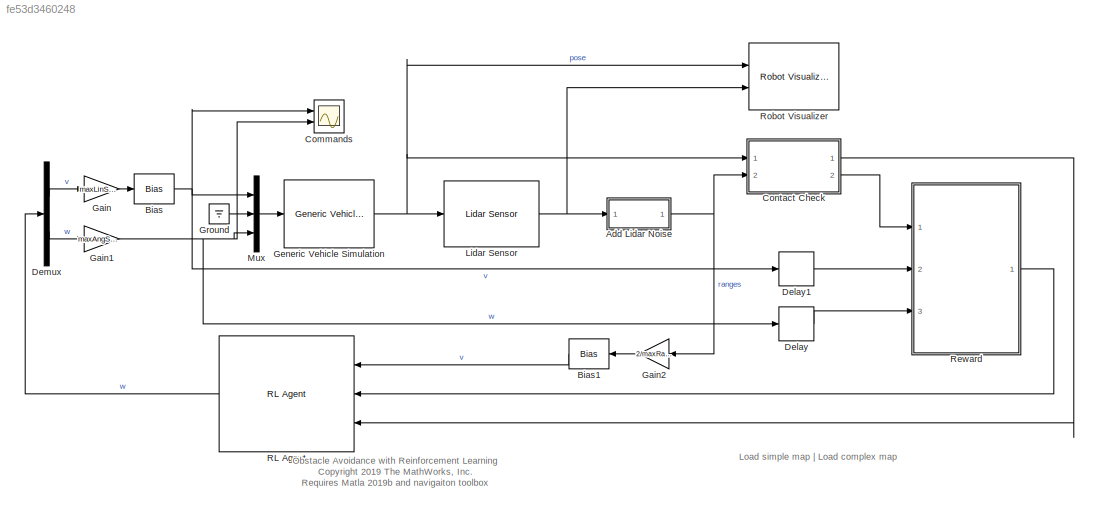
MODEL slx_fe53d3460248
KIND model
CONFIG AbsTol = auto
CONFIG EnableMultiTasking = off
CONFIG FixedStep = auto
CONFIG InitFcn = close all;\nclear showPath;\nlidarNoiseSeeds = randi(intmax,size(scanAngles));
CONFIG MaxStep = auto
CONFIG MinStep = auto
CONFIG RelTol = 1e-3
CONFIG SampleTimeConstraint = Unconstrained
CONFIG Solver = ode23t
CONFIG SolverName = ode23t
CONFIG StartTime = 0.0
CONFIG StopTime = inf
WORKSPACE source: mxarray member
WORKSPACE mapForSim: object (value not decoded)
WORKSPACE occGrid: robotics.BinaryOccupancyGrid (value not decoded)
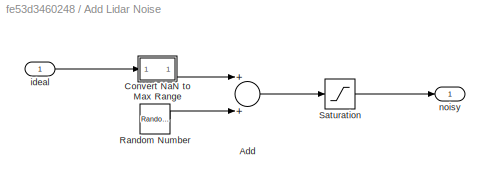
BLOCK [SubSystem] Add Lidar Noise
  Ports = [1, 1]
  RequestExecContextInheritance = off
BLOCK [Sum] Add Lidar Noise/Add
  InputSameDT = off
  OutDataTypeStr = Inherit: Inherit via internal rule
  Ports = [2, 1]
  SaturateOnIntegerOverflow = off
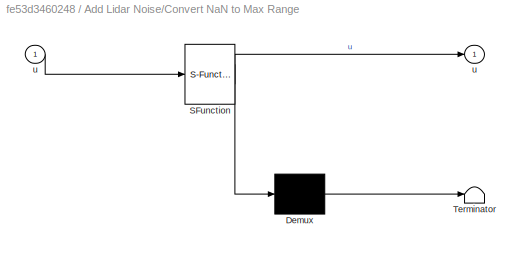
BLOCK [SubSystem] Add Lidar Noise/Convert NaN to Max Range
  ErrorFcn = Stateflow.Translate.translate
  PermitHierarchicalResolution = ExplicitOnly
  Ports = [1, 1]
  RequestExecContextInheritance = off
  SFBlockType = MATLAB Function
  TreatAsAtomicUnit = on
BLOCK [Demux] Add Lidar Noise/Convert NaN to Max Range/ Demux 
  Outputs = 1
  Ports = [1, 1]
BLOCK [S-Function] Add Lidar Noise/Convert NaN to Max Range/ SFunction 
  EnableBusSupport = on
  FunctionName = sf_sfun
  Parameters = maxRange
  PortCounts = [1 2]
  Ports = [1, 2]
  SFcnIsStateOwnerBlock = off
  SFunctionDeploymentMode = off
  Tag = Stateflow S-Function 2
BLOCK [Terminator] Add Lidar Noise/Convert NaN to Max Range/ Terminator 
BLOCK [Outport] Add Lidar Noise/Convert NaN to Max Range/u
  IconDisplay = Port number
  VectorParamsAs1DForOutWhenUnconnected = off
BLOCK [Inport] Add Lidar Noise/Convert NaN to Max Range/u 
  IconDisplay = Port number
BLOCK [RandomNumber] Add Lidar Noise/Random Number
  SampleTime = sampleTime
  Seed = lidarNoiseSeeds
  Variance = lidarNoiseVariance
BLOCK [Saturate] Add Lidar Noise/Saturation
  InputPortMap = u0
  LowerLimit = 0
  Ports = [1, 1]
  UpperLimit = inf
BLOCK [Inport] Add Lidar Noise/ideal
  IconDisplay = Port number
BLOCK [Outport] Add Lidar Noise/noisy
  IconDisplay = Port number
BLOCK [Bias] Bias
  Bias = maxLinSpeed/2
  SaturateOnIntegerOverflow = off
BLOCK [Bias] Bias1
  Bias = -1
  SaturateOnIntegerOverflow = off
BLOCK [Scope] Commands
  Floating = off
  NumInputPorts = 2
  Ports = [2]
  ScopeSpecificationString = Simulink.scopes.TimeScopeBlockCfg('CurrentConfiguration', extmgr.ConfigurationSet(extmgr.Configuration('Core','General UI',true),extmgr.Configuration('Core','Source UI',true),extmgr.Configuration('Sources','WiredSimulink',true,'DataLoggingVariableName','ScopeData1'),extmgr.Configuration('Visuals','Time Domain',true,'SerializedDisplays',{struct('MinYLimReal','0.299951','MaxYLimReal','0.299999','YLa...<+2023ch>
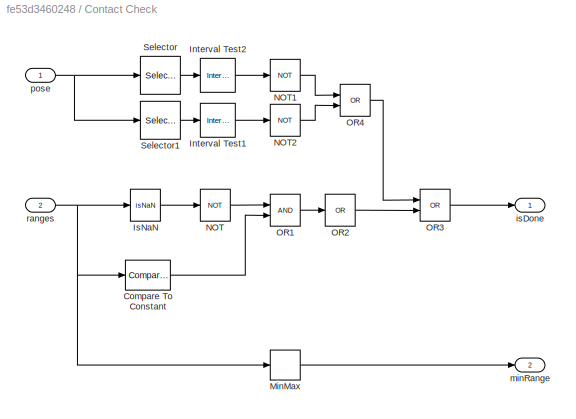
BLOCK [SubSystem] Contact Check
  Ports = [2, 2]
  RequestExecContextInheritance = off
BLOCK [Reference] Contact Check/Compare To Constant  REF=simulink/Logic and Bit
Operations/Compare
To Constant
  Ports = [1, 1]
  SourceBlock = simulink/Logic and Bit\nOperations/Compare\nTo Constant
  SourceProductBaseCode = SL
  SourceProductName = Simulink
  SourceType = Compare To Constant
BLOCK [Reference] Contact Check/Interval Test1  REF=simulink/Logic and Bit
Operations/Interval Test
  Ports = [1, 1]
  SourceBlock = simulink/Logic and Bit\nOperations/Interval Test
  SourceProductBaseCode = SL
  SourceProductName = Simulink
  SourceType = Interval Test
BLOCK [Reference] Contact Check/Interval Test2  REF=simulink/Logic and Bit
Operations/Interval Test
  Ports = [1, 1]
  SourceBlock = simulink/Logic and Bit\nOperations/Interval Test
  SourceProductBaseCode = SL
  SourceProductName = Simulink
  SourceType = Interval Test
BLOCK [RelationalOperator] Contact Check/IsNaN
  InputSameDT = off
  Operator = isNaN
  OutDataTypeStr = boolean
  Ports = [1, 1]
  RndMeth = Simplest
BLOCK [MinMax] Contact Check/MinMax
  InputSameDT = off
  Ports = [1, 1]
  SaturateOnIntegerOverflow = off
BLOCK [Logic] Contact Check/NOT
  AllPortsSameDT = off
  IconShape = distinctive
  Operator = NOT
  OutDataTypeStr = boolean
  Ports = [1, 1]
BLOCK [Logic] Contact Check/NOT1
  AllPortsSameDT = off
  IconShape = distinctive
  Operator = NOT
  OutDataTypeStr = boolean
  Ports = [1, 1]
BLOCK [Logic] Contact Check/NOT2
  AllPortsSameDT = off
  IconShape = distinctive
  Operator = NOT
  OutDataTypeStr = boolean
  Ports = [1, 1]
BLOCK [Logic] Contact Check/OR1
  AllPortsSameDT = off
  IconShape = distinctive
  OutDataTypeStr = boolean
  Ports = [2, 1]
BLOCK [Logic] Contact Check/OR2
  AllPortsSameDT = off
  IconShape = distinctive
  Inputs = 1
  Operator = OR
  OutDataTypeStr = boolean
  Ports = [1, 1]
BLOCK [Logic] Contact Check/OR3
  AllPortsSameDT = off
  IconShape = distinctive
  Operator = OR
  OutDataTypeStr = boolean
  Ports = [2, 1]
BLOCK [Logic] Contact Check/OR4
  AllPortsSameDT = off
  IconShape = distinctive
  Operator = OR
  OutDataTypeStr = boolean
  Ports = [2, 1]
BLOCK [Selector] Contact Check/Selector
  IndexOptions = Index vector (dialog)
  Indices = 1
  InputPortWidth = 3
  OutputSizes = 1
  Ports = [1, 1]
BLOCK [Selector] Contact Check/Selector1
  IndexOptions = Index vector (dialog)
  Indices = 2
  InputPortWidth = 3
  OutputSizes = 1
  Ports = [1, 1]
BLOCK [Outport] Contact Check/isDone
  IconDisplay = Port number
  VectorParamsAs1DForOutWhenUnconnected = off
BLOCK [Outport] Contact Check/minRange
  IconDisplay = Port number
  Port = 2
  VectorParamsAs1DForOutWhenUnconnected = off
BLOCK [Inport] Contact Check/pose
  IconDisplay = Port number
BLOCK [Inport] Contact Check/ranges
  IconDisplay = Port number
  Port = 2
BLOCK [Delay] Delay
  DelayLength = 1
  InputPortMap = u0
  Ports = [1, 1]
BLOCK [Delay] Delay1
  DelayLength = 1
  InputPortMap = u0
  Ports = [1, 1]
BLOCK [Demux] Demux
  DisplayOption = bar
  Outputs = 2
  Ports = [1, 2]
BLOCK [Gain] Gain
  Gain = maxLinSpeed/2
  OutDataTypeStr = Inherit: Inherit via internal rule
  ParamDataTypeStr = Inherit: Inherit via internal rule
  SaturateOnIntegerOverflow = off
BLOCK [Gain] Gain1
  Gain = maxAngSpeed
  OutDataTypeStr = Inherit: Inherit via internal rule
  ParamDataTypeStr = Inherit: Inherit via internal rule
  SaturateOnIntegerOverflow = off
BLOCK [Gain] Gain2
  Gain = 2/maxRange
  OutDataTypeStr = Inherit: Inherit via internal rule
  ParamDataTypeStr = Inherit: Inherit via internal rule
  SaturateOnIntegerOverflow = off
BLOCK [Reference] Generic Vehicle Simulation  REF=mobileRoboticsLib/Utilities/Generic Vehicle Simulation
  Ports = [1, 1]
  SourceBlock = mobileRoboticsLib/Utilities/Generic Vehicle Simulation
  SourceProductName = Mobile Robotics Simulation Library
  SourceType = Generic Vehicle Simulation
BLOCK [Ground] Ground
BLOCK [Reference] Lidar Sensor  REF=mobileRoboticsLib/Environments/Lidar Sensor
  Ports = [1, 1]
  SourceBlock = mobileRoboticsLib/Environments/Lidar Sensor
  SourceProductName = Ground Vehicles Library
  SourceType = LidarSensor
BLOCK [Mux] Mux
  DisplayOption = bar
  Inputs = 3
  Ports = [3, 1]
BLOCK [Reference] RL Agent  REF=rllib/RL Agent
  Ports = [3, 1]
  SourceBlock = rllib/RL Agent
  SourceProductBaseCode = RL
  SourceProductName = Reinforcement Learning Toolbox
  SourceType = RL Agent
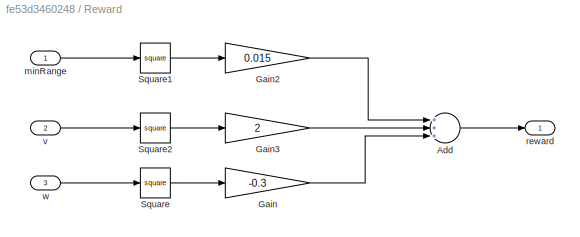
BLOCK [SubSystem] Reward
  Ports = [3, 1]
  RequestExecContextInheritance = off
BLOCK [Sum] Reward/Add
  InputSameDT = off
  Inputs = +++
  OutDataTypeStr = Inherit: Inherit via internal rule
  Ports = [3, 1]
  SaturateOnIntegerOverflow = off
BLOCK [Gain] Reward/Gain
  Gain = -0.3
  OutDataTypeStr = Inherit: Inherit via internal rule
  ParamDataTypeStr = Inherit: Inherit via internal rule
  SaturateOnIntegerOverflow = off
BLOCK [Gain] Reward/Gain2
  Gain = 0.015
  OutDataTypeStr = Inherit: Inherit via internal rule
  ParamDataTypeStr = Inherit: Inherit via internal rule
  SaturateOnIntegerOverflow = off
BLOCK [Gain] Reward/Gain3
  Gain = 2
  OutDataTypeStr = Inherit: Inherit via internal rule
  ParamDataTypeStr = Inherit: Inherit via internal rule
  SaturateOnIntegerOverflow = off
BLOCK [Math] Reward/Square
  Operator = square
  Ports = [1, 1]
BLOCK [Math] Reward/Square1
  Operator = square
  Ports = [1, 1]
BLOCK [Math] Reward/Square2
  Operator = square
  Ports = [1, 1]
BLOCK [Inport] Reward/minRange
  IconDisplay = Port number
BLOCK [Outport] Reward/reward
  IconDisplay = Port number
  VectorParamsAs1DForOutWhenUnconnected = off
BLOCK [Inport] Reward/v
  IconDisplay = Port number
  Port = 2
BLOCK [Inport] Reward/w
  IconDisplay = Port number
  Port = 3
BLOCK [Reference] Robot Visualizer  REF=mobileRoboticsLib/Environments/Robot Visualizer
  Ports = [2]
  Priority = 99
  SourceBlock = mobileRoboticsLib/Environments/Robot Visualizer
  SourceProductName = Ground Vehicles Library
  SourceType = Visualizer2D
ANNOTATION (root): Load simple map | Load complex map
ANNOTATION (root): Obstacle Avoidance with Reinforcement Learning <copyright redacted>
LINE Add Lidar Noise/Add:1 -> Add Lidar Noise/Saturation:1
LINE Add Lidar Noise/Convert NaN to Max Range:1 -> Add Lidar Noise/Add:1
LINE Add Lidar Noise/Random Number:1 -> Add Lidar Noise/Add:2
LINE Add Lidar Noise/Saturation:1 -> Add Lidar Noise/noisy:1
LINE Add Lidar Noise/ideal:1 -> Add Lidar Noise/Convert NaN to Max Range:1
NET Add Lidar Noise:1 -> Contact Check:2, Gain2:1
LINE Bias1:1 -> RL Agent:1
NET Bias:1 -> Commands:1, Delay1:1, Mux:1
LINE Contact Check/Compare To Constant:1 -> Contact Check/OR1:2
LINE Contact Check/Interval Test1:1 -> Contact Check/NOT2:1
LINE Contact Check/Interval Test2:1 -> Contact Check/NOT1:1
LINE Contact Check/IsNaN:1 -> Contact Check/NOT:1
LINE Contact Check/MinMax:1 -> Contact Check/minRange:1
LINE Contact Check/NOT1:1 -> Contact Check/OR4:1
LINE Contact Check/NOT2:1 -> Contact Check/OR4:2
LINE Contact Check/NOT:1 -> Contact Check/OR1:1
LINE Contact Check/OR1:1 -> Contact Check/OR2:1
LINE Contact Check/OR2:1 -> Contact Check/OR3:2
LINE Contact Check/OR3:1 -> Contact Check/isDone:1
LINE Contact Check/OR4:1 -> Contact Check/OR3:1
LINE Contact Check/Selector1:1 -> Contact Check/Interval Test1:1
LINE Contact Check/Selector:1 -> Contact Check/Interval Test2:1
NET Contact Check/pose:1 -> Contact Check/Selector1:1, Contact Check/Selector:1
NET Contact Check/ranges:1 -> Contact Check/Compare To Constant:1, Contact Check/IsNaN:1, Contact Check/MinMax:1
LINE Contact Check:1 -> RL Agent:3
LINE Contact Check:2 -> Reward:1
LINE Delay1:1 -> Reward:2
LINE Delay:1 -> Reward:3
LINE Demux:1 -> Gain:1
LINE Demux:2 -> Gain1:1
NET Gain1:1 -> Commands:2, Delay:1, Mux:3
LINE Gain2:1 -> Bias1:1
LINE Gain:1 -> Bias:1
NET Generic Vehicle Simulation:1 -> Contact Check:1, Lidar Sensor:1, Robot Visualizer:1
LINE Ground:1 -> Mux:2
NET Lidar Sensor:1 -> Add Lidar Noise:1, Robot Visualizer:2
LINE Mux:1 -> Generic Vehicle Simulation:1
LINE RL Agent:1 -> Demux:1
LINE Reward/Add:1 -> Reward/reward:1
LINE Reward/Gain2:1 -> Reward/Add:1
LINE Reward/Gain3:1 -> Reward/Add:2
LINE Reward/Gain:1 -> Reward/Add:3
LINE Reward/Square1:1 -> Reward/Gain2:1
LINE Reward/Square2:1 -> Reward/Gain3:1
LINE Reward/Square:1 -> Reward/Gain:1
LINE Reward/minRange:1 -> Reward/Square1:1
LINE Reward/v:1 -> Reward/Square2:1
LINE Reward/w:1 -> Reward/Square:1
LINE Reward:1 -> RL Agent:2
note: NET lines group one-source signal fan-out (src -> all destinations, sorted); 1:1 wires keep LINE
CHART Add Lidar Noise/Convert NaN to Max Range states=1 transitions=1
  STATE_LABEL 'eML_blk_kernel()'
  STATE_LABEL 'SCRIPT:\nfunction u = removeNans(u,maxRange)\n\nu(isnan(u)) = maxRange;'
